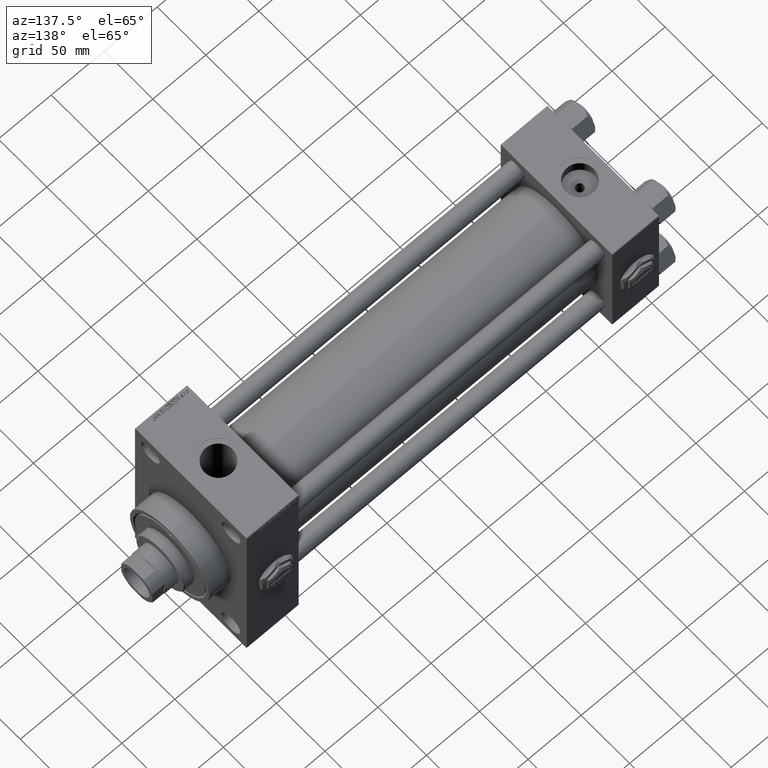
[diagram: clean part render]
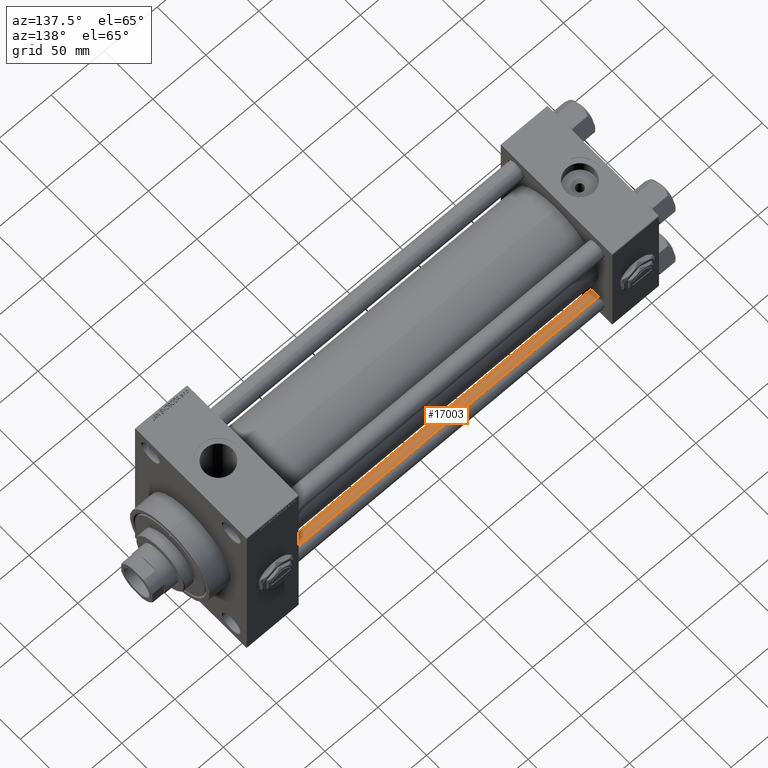
[diagram: same view with one face highlighted and labeled with its STEP entity id]
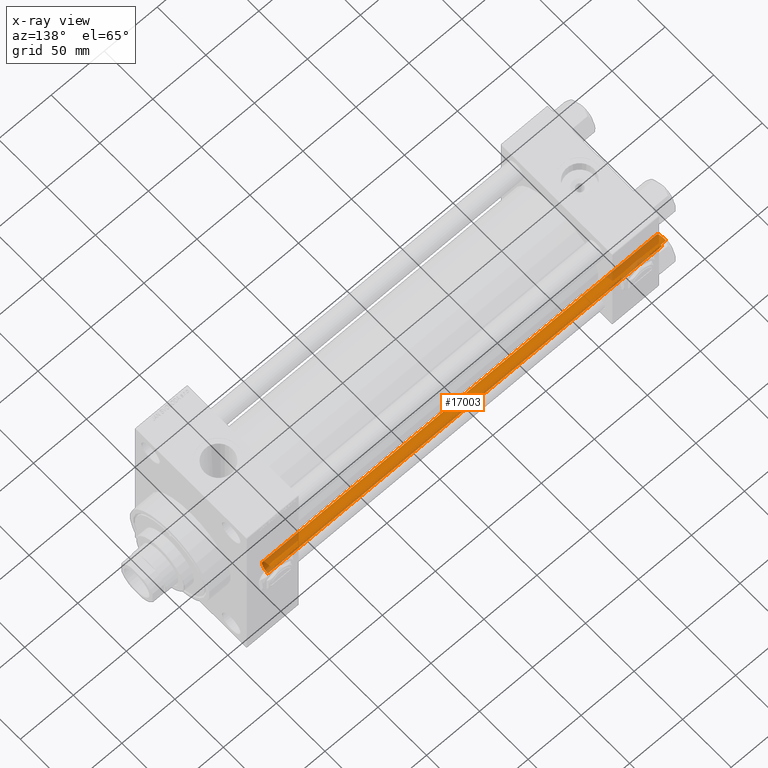
[diagram: x-ray of the same camera — body ghosted, the highlighted face saturated]
A machine part, auxiliary view. The second image highlights one B-rep face of the part: STEP entity #17003.
The next image is the same camera in x-ray: the body ghosted, the highlighted face saturated — about 16% of this face is hidden behind the body in this view.
In plain terms, the highlighted cylindrical surface (edge-blend (fillet) strip) has radius 8 mm, axis along (1, -0, 0).
Its self-contained STEP definition (entity closure, byte-faithful):
#975 = CARTESIAN_POINT ( 'NONE',  ( 0.000000000000000000, 0.000000000000000000, 372.5000000000000000 ) ) ;
#1406 = DIRECTION ( 'NONE',  ( -0.000000000000000000, -0.000000000000000000, 1.000000000000000000 ) ) ;
#2856 = CARTESIAN_POINT ( 'NONE',  ( -8.000000000000000000, 0.000000000000000000, 0.5000000000000559552 ) ) ;
#3708 = EDGE_LOOP ( 'NONE', ( #7076, #14266, #49852, #36091 ) ) ;
#5874 = VECTOR ( 'NONE', #18970, 1000.000000000000000 ) ;
#6267 = AXIS2_PLACEMENT_3D ( 'NONE', #975, #16388, #46251 ) ;
#7076 = ORIENTED_EDGE ( 'NONE', *, *, #15289, .F. ) ;
#13754 = EDGE_CURVE ( 'NONE', #24714, #29333, #49106, .T. ) ;
#14266 = ORIENTED_EDGE ( 'NONE', *, *, #33912, .T. ) ;
#14745 = AXIS2_PLACEMENT_3D ( 'NONE', #34898, #15431, #24037 ) ;
#15289 = EDGE_CURVE ( 'NONE', #31471, #19357, #33479, .T. ) ;
#15431 = DIRECTION ( 'NONE',  ( -0.000000000000000000, -0.000000000000000000, -1.000000000000000000 ) ) ;
#16388 = DIRECTION ( 'NONE',  ( 0.000000000000000000, 0.000000000000000000, -1.000000000000000000 ) ) ;
#17003 = ADVANCED_FACE ( 'NONE', ( #19463 ), #39693, .T. ) ;
#17068 = DIRECTION ( 'NONE',  ( 1.000000000000000000, 0.000000000000000000, 0.000000000000000000 ) ) ;
#18970 = DIRECTION ( 'NONE',  ( -0.000000000000000000, -0.000000000000000000, -1.000000000000000000 ) ) ;
#19357 = VERTEX_POINT ( 'NONE', #21688 ) ;
#19463 = FACE_OUTER_BOUND ( 'NONE', #3708, .T. ) ;
#21688 = CARTESIAN_POINT ( 'NONE',  ( 8.000000000000000000, 9.797174393178825657E-16, 0.5000000000000559552 ) ) ;
#24037 = DIRECTION ( 'NONE',  ( -1.000000000000000000, 0.000000000000000000, 0.000000000000000000 ) ) ;
#24714 = VERTEX_POINT ( 'NONE', #42173 ) ;
#26393 = DIRECTION ( 'NONE',  ( -0.000000000000000000, -0.000000000000000000, -1.000000000000000000 ) ) ;
#26885 = CIRCLE ( 'NONE', #33358, 8.000000000000000000 ) ;
#29333 = VERTEX_POINT ( 'NONE', #2856 ) ;
#31471 = VERTEX_POINT ( 'NONE', #47537 ) ;
#33358 = AXIS2_PLACEMENT_3D ( 'NONE', #36303, #1406, #17068 ) ;
#33479 = LINE ( 'NONE', #44859, #39757 ) ;
#33912 = EDGE_CURVE ( 'NONE', #31471, #24714, #38550, .T. ) ;
#34898 = CARTESIAN_POINT ( 'NONE',  ( 0.000000000000000000, 0.000000000000000000, 373.0000000000000000 ) ) ;
#36091 = ORIENTED_EDGE ( 'NONE', *, *, #44241, .T. ) ;
#36303 = CARTESIAN_POINT ( 'NONE',  ( 0.000000000000000000, 0.000000000000000000, 0.5000000000000559552 ) ) ;
#37952 = CARTESIAN_POINT ( 'NONE',  ( -8.000000000000000000, 0.000000000000000000, 373.0000000000000000 ) ) ;
#38550 = CIRCLE ( 'NONE', #6267, 8.000000000000000000 ) ;
#39693 = CYLINDRICAL_SURFACE ( 'NONE', #14745, 8.000000000000000000 ) ;
#39757 = VECTOR ( 'NONE', #26393, 1000.000000000000000 ) ;
#42173 = CARTESIAN_POINT ( 'NONE',  ( -8.000000000000000000, 0.000000000000000000, 372.5000000000000000 ) ) ;
#44241 = EDGE_CURVE ( 'NONE', #29333, #19357, #26885, .T. ) ;
#44859 = CARTESIAN_POINT ( 'NONE',  ( 8.000000000000000000, 9.797174393178825657E-16, 373.0000000000000000 ) ) ;
#46251 = DIRECTION ( 'NONE',  ( 1.000000000000000000, 0.000000000000000000, 0.000000000000000000 ) ) ;
#47537 = CARTESIAN_POINT ( 'NONE',  ( 8.000000000000000000, 9.797174393178825657E-16, 372.5000000000000000 ) ) ;
#49106 = LINE ( 'NONE', #37952, #5874 ) ;
#49852 = ORIENTED_EDGE ( 'NONE', *, *, #13754, .T. ) ;